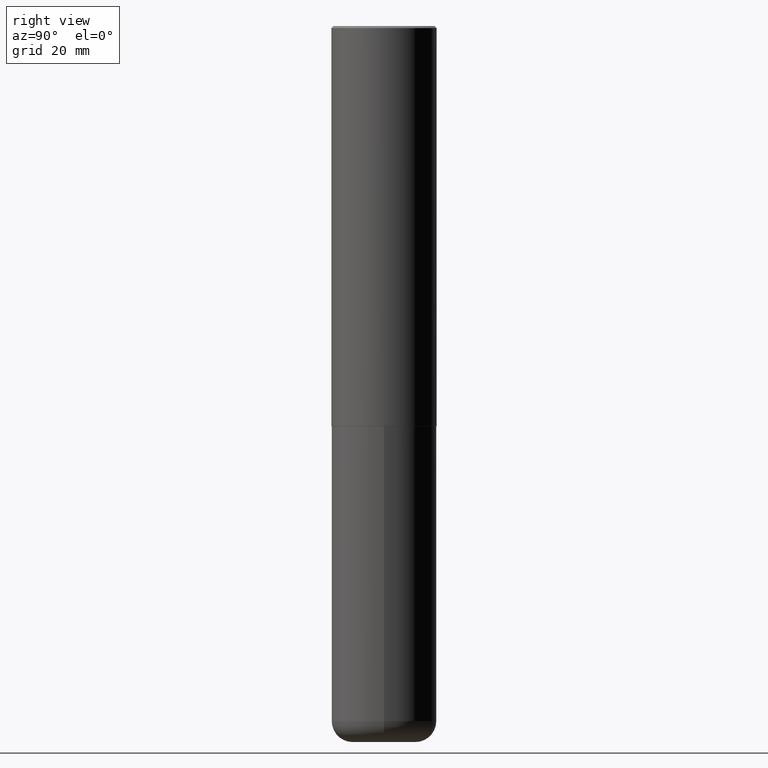
[diagram: clean part render]
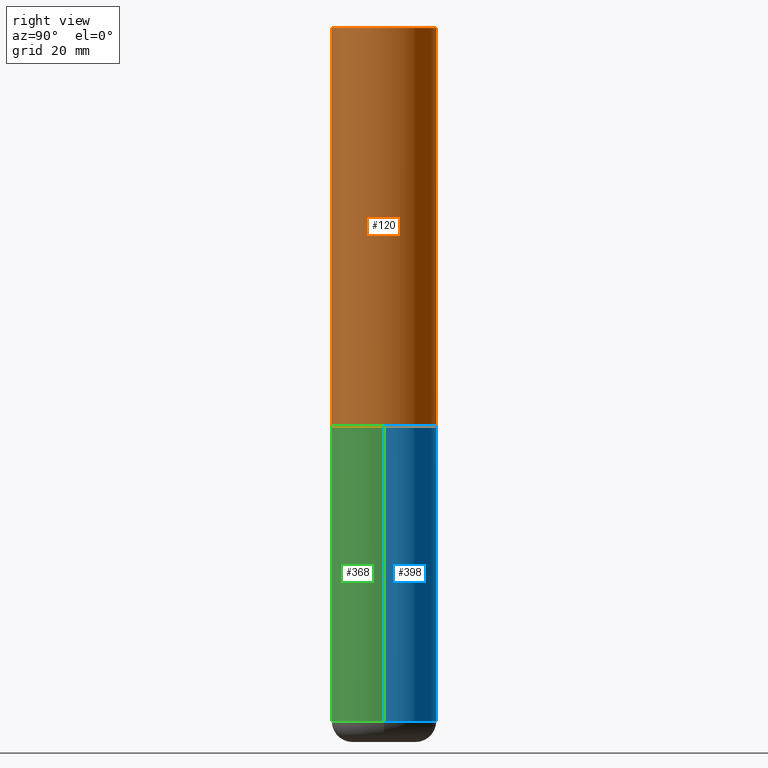
[diagram: same view with three faces highlighted in distinct colors, each labeled with its STEP entity id]
A machine part, right view with three faces highlighted in distinct colors.
Their STEP definitions:

[orange] entity #120 — the highlighted cylindrical surface (partial cylindrical patch) has radius 12.5006 mm, axis along (-0, 0, 1).
#7 = VERTEX_POINT ( 'NONE', #363 ) ;
#15 = LINE ( 'NONE', #81, #221 ) ;
#18 = CARTESIAN_POINT ( 'NONE',  ( -3.436665081823296565E-15, -0.4921500000000000874, 1.717974658438411319E-15 ) ) ;
#25 = EDGE_CURVE ( 'NONE', #33, #7, #288, .T. ) ;
#33 = VERTEX_POINT ( 'NONE', #117 ) ;
#50 = AXIS2_PLACEMENT_3D ( 'NONE', #142, #272, #219 ) ;
#81 = CARTESIAN_POINT ( 'NONE',  ( 3.496936074043333291E-15, 0.4921500000000000874, -1.717974658438411319E-15 ) ) ;
#86 = EDGE_CURVE ( 'NONE', #100, #91, #235, .T. ) ;
#91 = VERTEX_POINT ( 'NONE', #372 ) ;
#100 = VERTEX_POINT ( 'NONE', #406 ) ;
#109 = LINE ( 'NONE', #18, #347 ) ;
#117 = CARTESIAN_POINT ( 'NONE',  ( -3.376394089603257868E-15, -0.4921499999999999764, -0.01999999999999839059 ) ) ;
#119 = DIRECTION ( 'NONE',  ( -2.445976594451651952E-29, 3.490754157143982552E-15, 1.000000000000000000 ) ) ;
#120 = ADVANCED_FACE ( 'NONE', ( #408 ), #182, .T. ) ;
#142 = CARTESIAN_POINT ( 'NONE',  ( 4.891953188903329688E-31, -6.981508314288001687E-17, -0.02000000000000010797 ) ) ;
#144 = CARTESIAN_POINT ( 'NONE',  ( 9.145751084314172604E-29, -1.305227886897706845E-14, -3.739100000000000534 ) ) ;
#161 = ORIENTED_EDGE ( 'NONE', *, *, #217, .T. ) ;
#172 = EDGE_CURVE ( 'NONE', #100, #33, #109, .T. ) ;
#182 = CYLINDRICAL_SURFACE ( 'NONE', #281, 0.4921500000000000874 ) ;
#217 = EDGE_CURVE ( 'NONE', #91, #7, #15, .T. ) ;
#219 = DIRECTION ( 'NONE',  ( -6.982962677686265922E-15, -1.000000000000000000, 3.486624039460257331E-15 ) ) ;
#220 = DIRECTION ( 'NONE',  ( -6.982962677686265922E-15, -1.000000000000000000, 3.490754157143982552E-15 ) ) ;
#221 = VECTOR ( 'NONE', #349, 39.37007874015748143 ) ;
#235 = CIRCLE ( 'NONE', #341, 0.4921500000000003650 ) ;
#240 = DIRECTION ( 'NONE',  ( -6.982962677686265922E-15, -1.000000000000000000, 3.330506545156063496E-15 ) ) ;
#272 = DIRECTION ( 'NONE',  ( -2.445976594451651952E-29, 3.490754157143982552E-15, 1.000000000000000000 ) ) ;
#281 = AXIS2_PLACEMENT_3D ( 'NONE', #308, #119, #220 ) ;
#288 = CIRCLE ( 'NONE', #50, 0.4921499999999999209 ) ;
#308 = CARTESIAN_POINT ( 'NONE',  ( 0.000000000000000000, 0.000000000000000000, 0.000000000000000000 ) ) ;
#321 = ORIENTED_EDGE ( 'NONE', *, *, #25, .F. ) ;
#341 = AXIS2_PLACEMENT_3D ( 'NONE', #144, #400, #240 ) ;
#345 = DIRECTION ( 'NONE',  ( -2.445976594451651672E-29, 3.490754157143982552E-15, 1.000000000000000000 ) ) ;
#347 = VECTOR ( 'NONE', #345, 39.37007874015748143 ) ;
#349 = DIRECTION ( 'NONE',  ( -2.445976594451651672E-29, 3.490754157143982552E-15, 1.000000000000000000 ) ) ;
#360 = ORIENTED_EDGE ( 'NONE', *, *, #86, .T. ) ;
#363 = CARTESIAN_POINT ( 'NONE',  ( 3.436665081823295777E-15, 0.4921499999999998098, -0.02000000000000182188 ) ) ;
#372 = CARTESIAN_POINT ( 'NONE',  ( 3.496936074043380229E-15, 0.4921499999999873198, -3.739100000000002311 ) ) ;
#391 = EDGE_LOOP ( 'NONE', ( #360, #161, #321, #397 ) ) ;
#397 = ORIENTED_EDGE ( 'NONE', *, *, #172, .F. ) ;
#400 = DIRECTION ( 'NONE',  ( -2.445976594451651952E-29, 3.490754157143982552E-15, 1.000000000000000000 ) ) ;
#406 = CARTESIAN_POINT ( 'NONE',  ( -3.436665081823207030E-15, -0.4921500000000134101, -3.739099999999998758 ) ) ;
#408 = FACE_OUTER_BOUND ( 'NONE', #391, .T. ) ;

[blue] entity #398 — the highlighted cylindrical surface (partial cylindrical patch) has radius 12.5006 mm, axis along (-0, 0, 1).
#1 = EDGE_LOOP ( 'NONE', ( #55, #226, #225, #96 ) ) ;
#4 = CIRCLE ( 'NONE', #80, 0.4921499999999999764 ) ;
#9 = EDGE_CURVE ( 'NONE', #65, #27, #166, .T. ) ;
#27 = VERTEX_POINT ( 'NONE', #149 ) ;
#28 = DIRECTION ( 'NONE',  ( -2.445468806185136597E-29, 3.491481338843145583E-15, 1.000000000000000000 ) ) ;
#29 = EDGE_CURVE ( 'NONE', #332, #95, #4, .T. ) ;
#51 = CARTESIAN_POINT ( 'NONE',  ( -0.4921499999999999764, 3.496936074043332897E-15, -2.420853904668951509E-29 ) ) ;
#54 = DIRECTION ( 'NONE',  ( 1.000000000000000000, -6.982962677686265922E-15, 0.000000000000000000 ) ) ;
#55 = ORIENTED_EDGE ( 'NONE', *, *, #29, .T. ) ;
#57 = CARTESIAN_POINT ( 'NONE',  ( 9.146297882013029477E-29, -1.305848935540725085E-14, -3.740100000000000424 ) ) ;
#65 = VERTEX_POINT ( 'NONE', #173 ) ;
#80 = AXIS2_PLACEMENT_3D ( 'NONE', #373, #210, #399 ) ;
#95 = VERTEX_POINT ( 'NONE', #213 ) ;
#96 = ORIENTED_EDGE ( 'NONE', *, *, #366, .F. ) ;
#98 = AXIS2_PLACEMENT_3D ( 'NONE', #128, #251, #392 ) ;
#128 = CARTESIAN_POINT ( 'NONE',  ( 0.000000000000000000, 0.000000000000000000, 0.000000000000000000 ) ) ;
#131 = CYLINDRICAL_SURFACE ( 'NONE', #98, 0.4921499999999999764 ) ;
#149 = CARTESIAN_POINT ( 'NONE',  ( -0.4921499999999999764, -1.437263999222282936E-14, -3.740100000000000424 ) ) ;
#153 = DIRECTION ( 'NONE',  ( -2.445468806185136877E-29, 3.491481338843145188E-15, 1.000000000000000000 ) ) ;
#166 = CIRCLE ( 'NONE', #230, 0.4921499999999999764 ) ;
#173 = CARTESIAN_POINT ( 'NONE',  ( 0.4921499999999999764, -1.649515443723054663E-14, -3.740100000000000424 ) ) ;
#185 = LINE ( 'NONE', #223, #300 ) ;
#210 = DIRECTION ( 'NONE',  ( -2.445468806185136597E-29, 3.491481338843145583E-15, 1.000000000000000000 ) ) ;
#213 = CARTESIAN_POINT ( 'NONE',  ( -0.4921499999999997543, -1.918372670308173998E-14, -6.495999999999999552 ) ) ;
#216 = VECTOR ( 'NONE', #412, 39.37007874015748143 ) ;
#223 = CARTESIAN_POINT ( 'NONE',  ( 0.4921499999999999764, -3.436665081823295777E-15, 2.399810400207969603E-29 ) ) ;
#225 = ORIENTED_EDGE ( 'NONE', *, *, #9, .F. ) ;
#226 = ORIENTED_EDGE ( 'NONE', *, *, #375, .T. ) ;
#230 = AXIS2_PLACEMENT_3D ( 'NONE', #57, #28, #54 ) ;
#232 = FACE_OUTER_BOUND ( 'NONE', #1, .T. ) ;
#251 = DIRECTION ( 'NONE',  ( -2.445468806185136597E-29, 3.491481338843145583E-15, 1.000000000000000000 ) ) ;
#287 = LINE ( 'NONE', #51, #216 ) ;
#300 = VECTOR ( 'NONE', #153, 39.37007874015748143 ) ;
#320 = CARTESIAN_POINT ( 'NONE',  ( 0.4921499999999997543, -2.611732785894836787E-14, -6.495999999999999552 ) ) ;
#332 = VERTEX_POINT ( 'NONE', #320 ) ;
#366 = EDGE_CURVE ( 'NONE', #332, #65, #185, .T. ) ;
#373 = CARTESIAN_POINT ( 'NONE',  ( 1.588576536497864771E-28, -2.268066277712507367E-14, -6.495999999999999552 ) ) ;
#375 = EDGE_CURVE ( 'NONE', #95, #27, #287, .T. ) ;
#392 = DIRECTION ( 'NONE',  ( 1.000000000000000000, -6.982962677686265922E-15, 4.876176775795935793E-29 ) ) ;
#398 = ADVANCED_FACE ( 'NONE', ( #232 ), #131, .T. ) ;
#399 = DIRECTION ( 'NONE',  ( 1.000000000000000000, -6.982962677686265922E-15, 0.000000000000000000 ) ) ;
#412 = DIRECTION ( 'NONE',  ( -2.445468806185136877E-29, 3.491481338843145188E-15, 1.000000000000000000 ) ) ;

[green] entity #368 — the highlighted cylindrical surface (partial cylindrical patch) has radius 12.5006 mm, axis along (-0, 0, 1).
#10 = CIRCLE ( 'NONE', #140, 0.4921499999999999764 ) ;
#16 = DIRECTION ( 'NONE',  ( -2.445468806185136597E-29, 3.491481338843145583E-15, 1.000000000000000000 ) ) ;
#27 = VERTEX_POINT ( 'NONE', #149 ) ;
#32 = ORIENTED_EDGE ( 'NONE', *, *, #366, .T. ) ;
#42 = EDGE_CURVE ( 'NONE', #95, #332, #10, .T. ) ;
#51 = CARTESIAN_POINT ( 'NONE',  ( -0.4921499999999999764, 3.496936074043332897E-15, -2.420853904668951509E-29 ) ) ;
#65 = VERTEX_POINT ( 'NONE', #173 ) ;
#84 = DIRECTION ( 'NONE',  ( 1.000000000000000000, -6.982962677686265922E-15, 4.876176775795935793E-29 ) ) ;
#89 = DIRECTION ( 'NONE',  ( 1.000000000000000000, -6.982962677686265922E-15, 0.000000000000000000 ) ) ;
#95 = VERTEX_POINT ( 'NONE', #213 ) ;
#99 = ORIENTED_EDGE ( 'NONE', *, *, #375, .F. ) ;
#107 = CARTESIAN_POINT ( 'NONE',  ( 9.146297882013029477E-29, -1.305848935540725085E-14, -3.740100000000000424 ) ) ;
#110 = DIRECTION ( 'NONE',  ( -2.445468806185136597E-29, 3.491481338843145583E-15, 1.000000000000000000 ) ) ;
#115 = DIRECTION ( 'NONE',  ( 1.000000000000000000, -6.982962677686265922E-15, 0.000000000000000000 ) ) ;
#140 = AXIS2_PLACEMENT_3D ( 'NONE', #313, #16, #115 ) ;
#149 = CARTESIAN_POINT ( 'NONE',  ( -0.4921499999999999764, -1.437263999222282936E-14, -3.740100000000000424 ) ) ;
#153 = DIRECTION ( 'NONE',  ( -2.445468806185136877E-29, 3.491481338843145188E-15, 1.000000000000000000 ) ) ;
#173 = CARTESIAN_POINT ( 'NONE',  ( 0.4921499999999999764, -1.649515443723054663E-14, -3.740100000000000424 ) ) ;
#185 = LINE ( 'NONE', #223, #300 ) ;
#187 = CIRCLE ( 'NONE', #207, 0.4921499999999999764 ) ;
#197 = ORIENTED_EDGE ( 'NONE', *, *, #42, .T. ) ;
#207 = AXIS2_PLACEMENT_3D ( 'NONE', #107, #110, #89 ) ;
#213 = CARTESIAN_POINT ( 'NONE',  ( -0.4921499999999997543, -1.918372670308173998E-14, -6.495999999999999552 ) ) ;
#216 = VECTOR ( 'NONE', #412, 39.37007874015748143 ) ;
#223 = CARTESIAN_POINT ( 'NONE',  ( 0.4921499999999999764, -3.436665081823295777E-15, 2.399810400207969603E-29 ) ) ;
#227 = ORIENTED_EDGE ( 'NONE', *, *, #394, .F. ) ;
#233 = EDGE_LOOP ( 'NONE', ( #99, #197, #32, #227 ) ) ;
#247 = FACE_OUTER_BOUND ( 'NONE', #233, .T. ) ;
#287 = LINE ( 'NONE', #51, #216 ) ;
#300 = VECTOR ( 'NONE', #153, 39.37007874015748143 ) ;
#312 = AXIS2_PLACEMENT_3D ( 'NONE', #407, #353, #84 ) ;
#313 = CARTESIAN_POINT ( 'NONE',  ( 1.588576536497864771E-28, -2.268066277712507367E-14, -6.495999999999999552 ) ) ;
#320 = CARTESIAN_POINT ( 'NONE',  ( 0.4921499999999997543, -2.611732785894836787E-14, -6.495999999999999552 ) ) ;
#323 = CYLINDRICAL_SURFACE ( 'NONE', #312, 0.4921499999999999764 ) ;
#332 = VERTEX_POINT ( 'NONE', #320 ) ;
#353 = DIRECTION ( 'NONE',  ( -2.445468806185136597E-29, 3.491481338843145583E-15, 1.000000000000000000 ) ) ;
#366 = EDGE_CURVE ( 'NONE', #332, #65, #185, .T. ) ;
#368 = ADVANCED_FACE ( 'NONE', ( #247 ), #323, .T. ) ;
#375 = EDGE_CURVE ( 'NONE', #95, #27, #287, .T. ) ;
#394 = EDGE_CURVE ( 'NONE', #27, #65, #187, .T. ) ;
#407 = CARTESIAN_POINT ( 'NONE',  ( 0.000000000000000000, 0.000000000000000000, 0.000000000000000000 ) ) ;
#412 = DIRECTION ( 'NONE',  ( -2.445468806185136877E-29, 3.491481338843145188E-15, 1.000000000000000000 ) ) ;